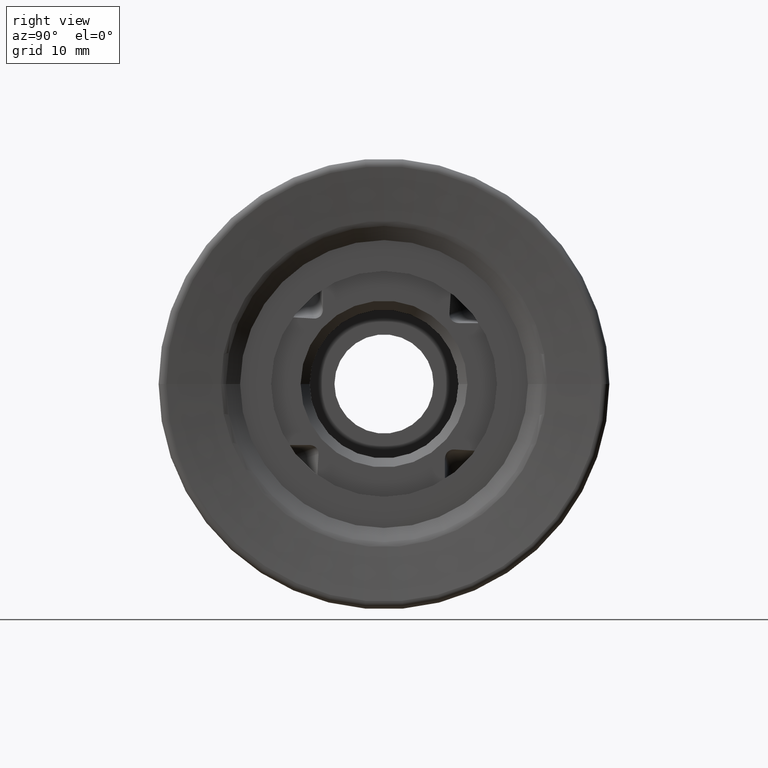
[diagram: clean part render]
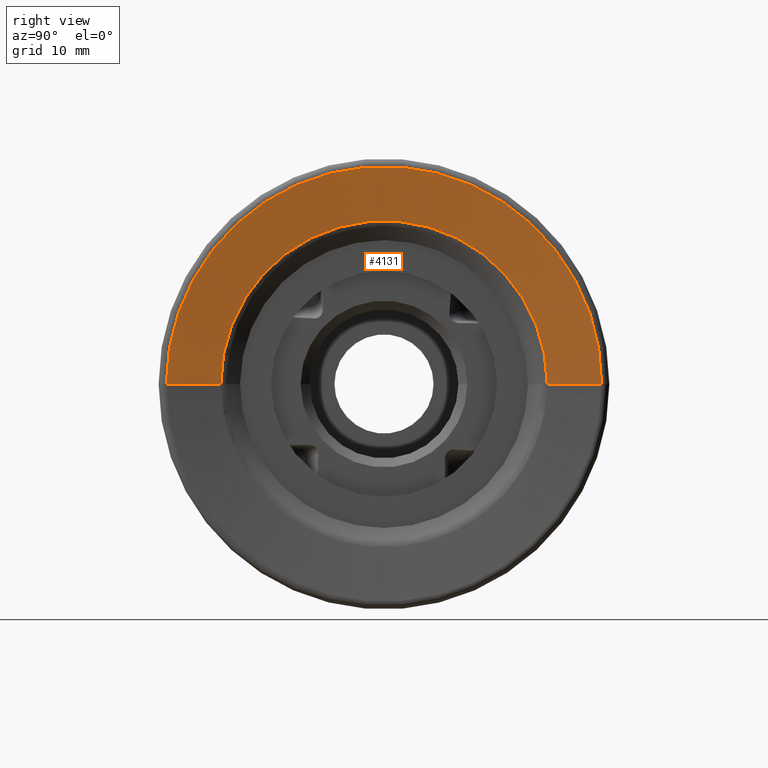
[diagram: same view with one face highlighted and labeled with its STEP entity id]
A machine part, right view. The second image highlights one B-rep face of the part: STEP entity #4131.
In plain terms, the highlighted conical surface has half-angle 83.768 deg.
Its self-contained STEP definition (entity closure, byte-faithful):
#64 = LINE ( 'NONE', #178, #5974 ) ;
#88 = DIRECTION ( 'NONE',  ( 0.1085557693147498900, -0.9940903605550568400, 1.217409578116988700E-016 ) ) ;
#178 = CARTESIAN_POINT ( 'NONE',  ( 1.745385699905017500, -24.14363468908677700, 2.956742494177312300E-015 ) ) ;
#196 = DIRECTION ( 'NONE',  ( -1.796299640202075900E-016, 1.000000000000000000, 0.0000000000000000000 ) ) ;
#203 = DIRECTION ( 'NONE',  ( 1.000000000000000000, 1.837647804684523300E-016, -0.0000000000000000000 ) ) ;
#204 = CARTESIAN_POINT ( 'NONE',  ( 1.086206926106191300, 1.996065773192167000E-016, 0.0000000000000000000 ) ) ;
#503 = DIRECTION ( 'NONE',  ( 1.000000000000000000, 1.837647804684523300E-016, -0.0000000000000000000 ) ) ;
#505 = DIRECTION ( 'NONE',  ( -1.796253441451509800E-016, 1.000000000000000000, 0.0000000000000000000 ) ) ;
#508 = CARTESIAN_POINT ( 'NONE',  ( 1.745385699905013200, 3.207404199758208100E-016, 0.0000000000000000000 ) ) ;
#509 = FACE_OUTER_BOUND ( 'NONE', #3019, .T. ) ;
#946 = EDGE_CURVE ( 'NONE', #4582, #4638, #64, .T. ) ;
#1055 = EDGE_CURVE ( 'NONE', #4557, #4582, #3696, .T. ) ;
#1375 = EDGE_CURVE ( 'NONE', #4665, #4638, #3744, .T. ) ;
#2536 = CARTESIAN_POINT ( 'NONE',  ( 1.745385699905013200, 3.207404199758208100E-016, 0.0000000000000000000 ) ) ;
#2537 = DIRECTION ( 'NONE',  ( 1.000000000000000000, 1.837647804684523300E-016, -0.0000000000000000000 ) ) ;
#2538 = DIRECTION ( 'NONE',  ( -1.796253441451509800E-016, 1.000000000000000000, 0.0000000000000000000 ) ) ;
#3019 = EDGE_LOOP ( 'NONE', ( #5257, #5516, #5274, #5206 ) ) ;
#3598 = VECTOR ( 'NONE', #6577, 1000.000000000000000 ) ;
#3696 = CIRCLE ( 'NONE', #5017, 18.10726030703100900 ) ;
#3744 = CIRCLE ( 'NONE', #3750, 24.14363468908677700 ) ;
#3750 = AXIS2_PLACEMENT_3D ( 'NONE', #2536, #2537, #2538 ) ;
#4131 = ADVANCED_FACE ( 'NONE', ( #509 ), #4997, .F. ) ;
#4426 = EDGE_CURVE ( 'NONE', #4557, #4665, #6569, .T. ) ;
#4557 = VERTEX_POINT ( 'NONE', #6865 ) ;
#4582 = VERTEX_POINT ( 'NONE', #6875 ) ;
#4638 = VERTEX_POINT ( 'NONE', #6936 ) ;
#4665 = VERTEX_POINT ( 'NONE', #6960 ) ;
#4997 = CONICAL_SURFACE ( 'NONE', #4998, 24.14363468908677700, 1.462026208886524600 ) ;
#4998 = AXIS2_PLACEMENT_3D ( 'NONE', #508, #503, #505 ) ;
#5017 = AXIS2_PLACEMENT_3D ( 'NONE', #204, #203, #196 ) ;
#5206 = ORIENTED_EDGE ( 'NONE', *, *, #1375, .T. ) ;
#5257 = ORIENTED_EDGE ( 'NONE', *, *, #946, .F. ) ;
#5274 = ORIENTED_EDGE ( 'NONE', *, *, #4426, .T. ) ;
#5516 = ORIENTED_EDGE ( 'NONE', *, *, #1055, .F. ) ;
#5974 = VECTOR ( 'NONE', #88, 1000.000000000000000 ) ;
#6569 = LINE ( 'NONE', #6576, #3598 ) ;
#6576 = CARTESIAN_POINT ( 'NONE',  ( 1.745385699905008800, 24.14363468908677700, 0.0000000000000000000 ) ) ;
#6577 = DIRECTION ( 'NONE',  ( 0.1085557693147495300, 0.9940903605550568400, 0.0000000000000000000 ) ) ;
#6865 = CARTESIAN_POINT ( 'NONE',  ( 1.086206926106188000, 18.10726030703101200, 0.0000000000000000000 ) ) ;
#6875 = CARTESIAN_POINT ( 'NONE',  ( 1.086206926106194400, -18.10726030703101200, 2.217499837633345000E-015 ) ) ;
#6936 = CARTESIAN_POINT ( 'NONE',  ( 1.745385699905017500, -24.14363468908677700, 3.009179746022847900E-015 ) ) ;
#6960 = CARTESIAN_POINT ( 'NONE',  ( 1.745385699905008800, 24.14363468908677700, 0.0000000000000000000 ) ) ;